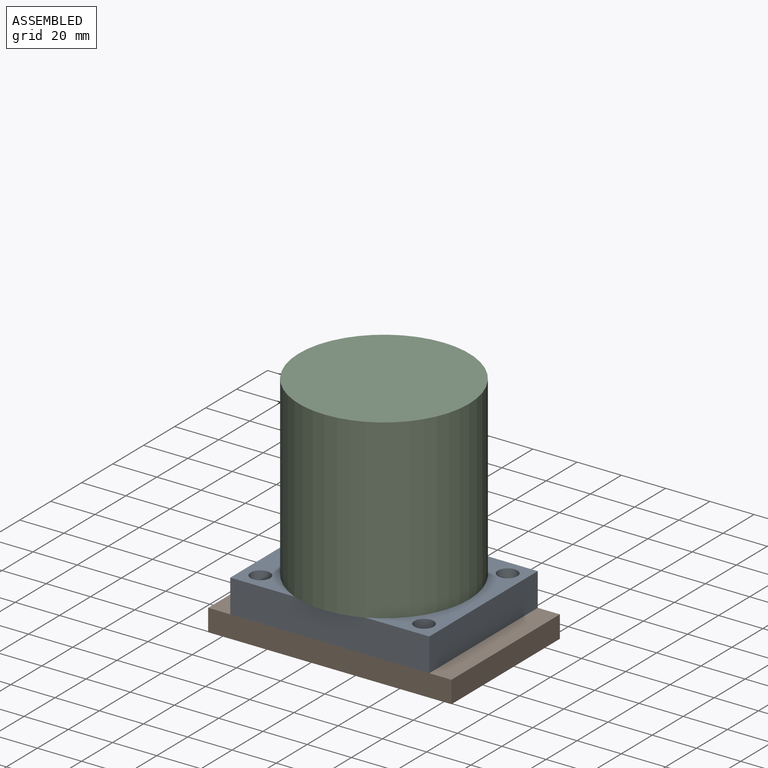
[diagram: assembled view]
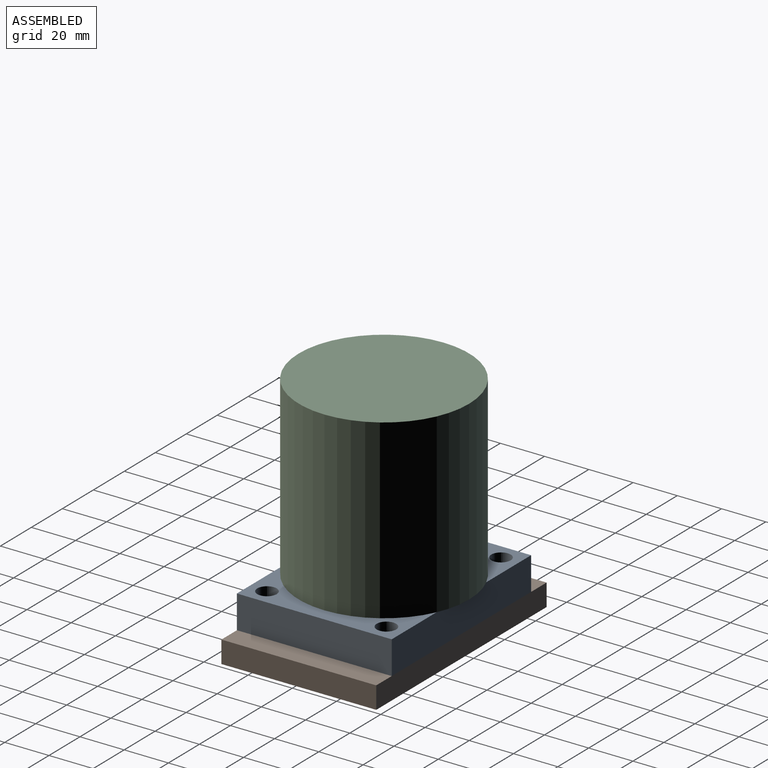
[diagram: assembled view, second angle]
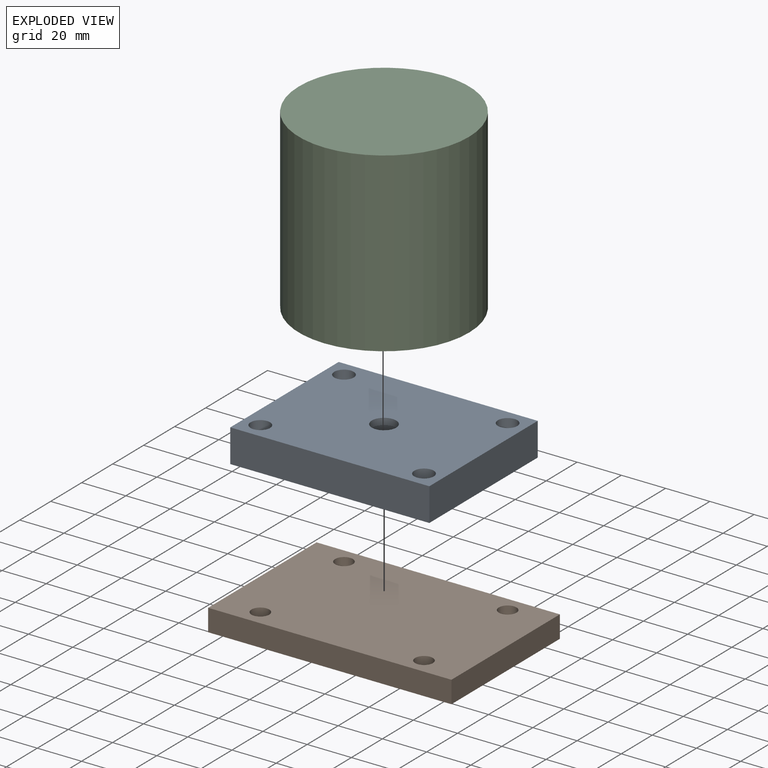
[diagram: exploded view]
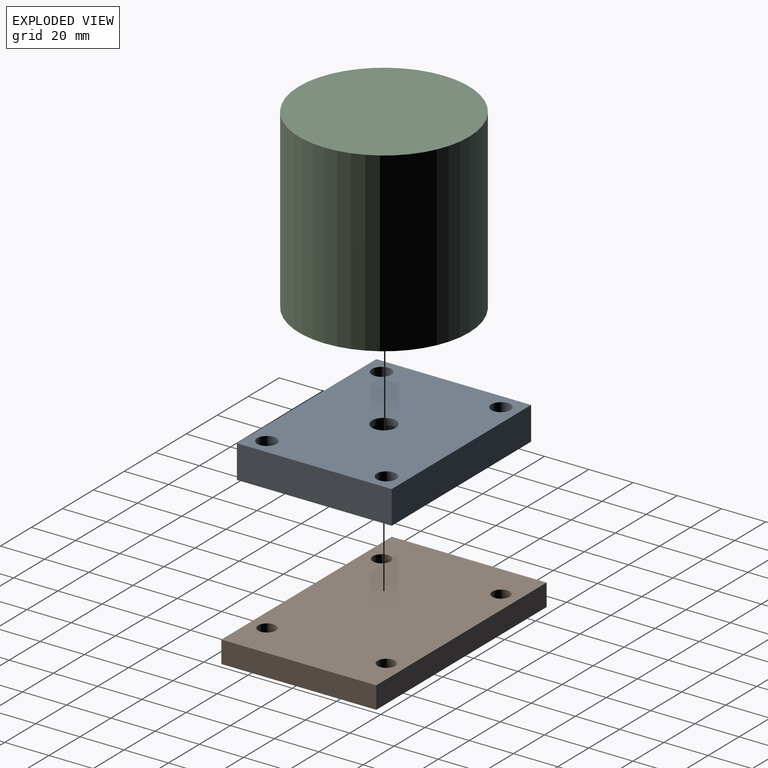
[diagram: exploded view, second angle]
ASSEMBLY  parts=3 mates=2
PART A: 13 faces, bbox 90x70x15 mm
  f0: plane 90x15mm, normal (0,-1,0), area 1350mm2, adj f2,f3,f4,f5
  f1: plane 90x15mm, normal (0,1,0), area 1350mm2, adj f2,f3,f4,f5
  f2: plane 90x70mm, normal (0,0,-1), area 5961.7mm2, adj f0,f1,f3,f5,f6,f7,f8,f9
  f3: plane 70x15mm, normal (-1,0,0), area 1050mm2, adj f0,f1,f2,f4
  f4: plane 90x70mm, normal (0,0,1), area 5742.6mm2, adj f0,f1,f3,f5,f6,f7,f8,f9
  f5: plane 70x15mm, normal (1,0,0), area 1050mm2, adj f0,f1,f2,f4
  f6: cylinder r=4.4mm len=15mm, axis (0,0,1), area 414.7mm2, adj f2,f4
  f7: cylinder r=4.4mm len=15mm, axis (0,0,1), area 414.7mm2, adj f2,f4
  f8: cylinder r=4.4mm len=15mm, axis (0,0,1), area 414.7mm2, adj f2,f4
  f9: cylinder r=4.4mm len=15mm, axis (0,0,1), area 414.7mm2, adj f2,f4
  f10: cylinder r=5.5mm len=11mm, axis (0,0,1), area 103.7mm2, adj f2,f11
  f11: plane 20x20mm, normal (0,0,1), area 219.1mm2, adj f10,f12
  f12: cylinder r=10mm len=20mm, axis (0,0,1), area 754mm2, adj f4,f11
PART B: 10 faces, bbox 110x70x10 mm
  f0: plane 110x10mm, normal (0,-1,0), area 1100mm2, adj f2,f3,f4,f5
  f1: plane 110x10mm, normal (0,1,0), area 1100mm2, adj f2,f3,f4,f5
  f2: plane 70x10mm, normal (-1,0,0), area 700mm2, adj f0,f1,f3,f5
  f3: plane 110x70mm, normal (0,0,1), area 7498.9mm2, adj f0,f1,f2,f4,f6,f7,f8,f9
  f4: plane 70x10mm, normal (1,0,0), area 700mm2, adj f0,f1,f3,f5
  f5: plane 110x70mm, normal (0,0,-1), area 7498.9mm2, adj f0,f1,f2,f4,f6,f7,f8,f9
  f6: cylinder r=4mm len=10mm, axis (0,0,1), area 251.3mm2, adj f3,f5
  f7: cylinder r=4mm len=10mm, axis (0,0,1), area 251.3mm2, adj f3,f5
  f8: cylinder r=4mm len=10mm, axis (0,0,1), area 251.3mm2, adj f3,f5
  f9: cylinder r=4mm len=10mm, axis (0,0,1), area 251.3mm2, adj f3,f5
PART C: 3 faces, bbox 77x77x80 mm
  f0: cylinder r=38.5mm len=80mm, axis (0,0,-1), area 19352.2mm2, adj f1,f2
  f1: plane 77x77mm, normal (0,0,1), area 4656.6mm2, adj f0
  f2: plane 77x77mm, normal (0,0,-1), area 4656.6mm2, adj f0
PLACE A rot(axis=(1,0,0),180deg) t=(-22.78,50.02,83.62)mm
PLACE B t=(22.22,-19.98,58.62)mm
PLACE C t=(22.22,15.02,83.62)mm
MATE fastened A.f10 <-> B.f3  axis (0,0,-1) through (22.22,15.02,68.62)mm
MATE fastened A.f10 <-> C.f0  axis (0,0,1) through (22.22,15.02,83.62)mm
